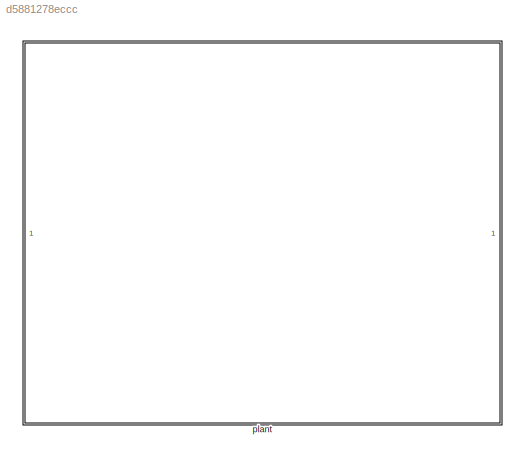
MODEL slx_d5881278eccc
KIND library
CONFIG AbsTol = auto
CONFIG EnableMultiTasking = off
CONFIG FixedStep = auto
CONFIG MaxStep = auto
CONFIG MinStep = auto
CONFIG RelTol = 1e-3
CONFIG SampleTimeConstraint = Unconstrained
CONFIG SolverName = VariableStepAuto
CONFIG StartTime = 0.0
CONFIG StopTime = 10.0
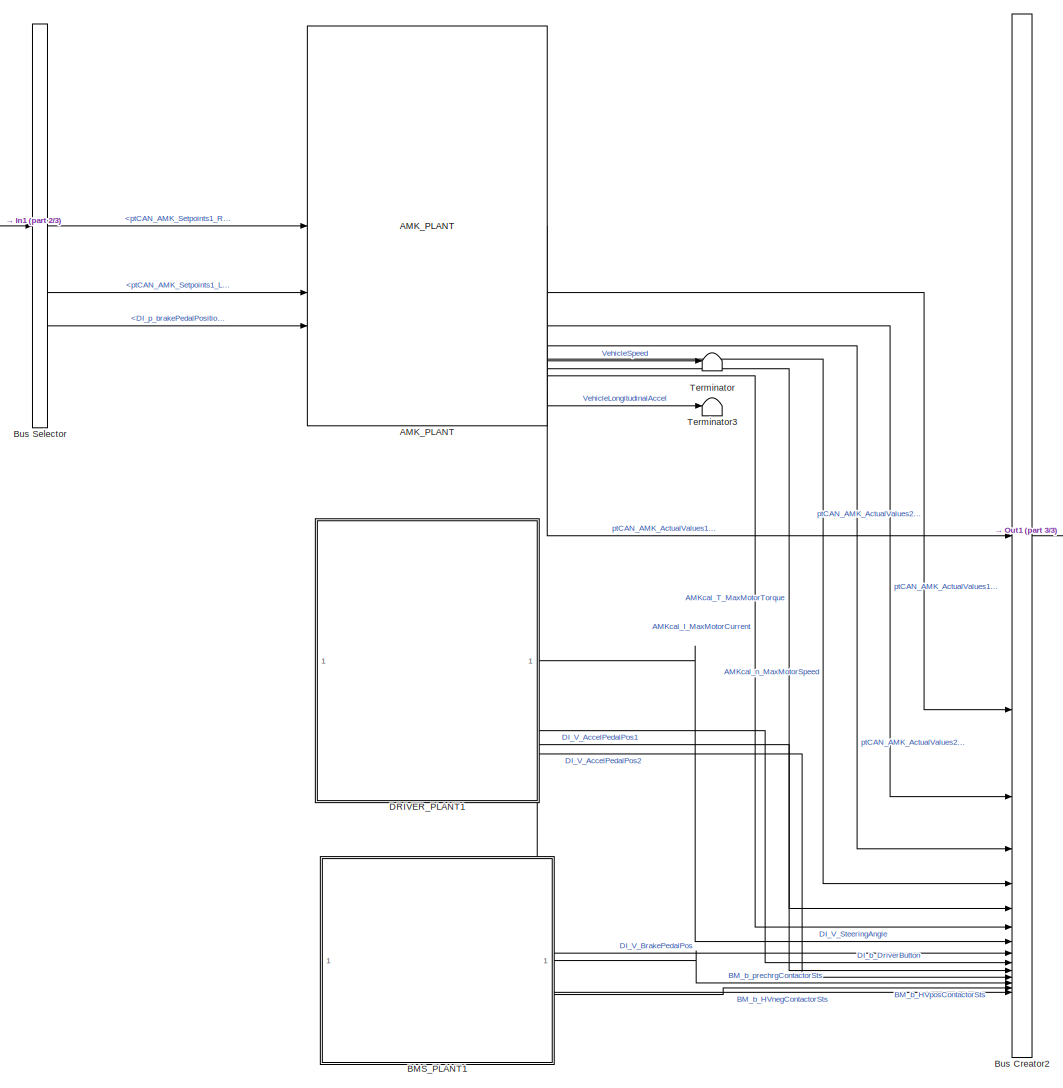
[diagram: plant - part 1/3, most of the canvas]
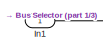
[diagram: plant - part 2/3, top left region]
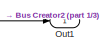
[diagram: plant - part 3/3, middle right region]
BLOCK [SubSystem] plant
BLOCK [Reference] plant/AMK_PLANT  REF=AMK_model_lib/AMK_PLANT
  SourceBlock = AMK_model_lib/AMK_PLANT
  SourceType = SubSystem
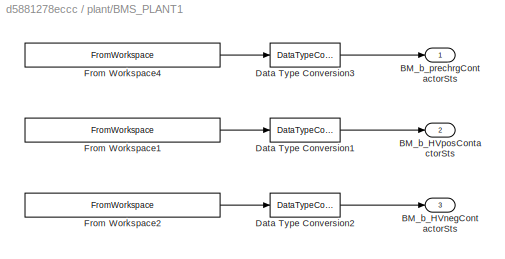
BLOCK [SubSystem] plant/BMS_PLANT1
BLOCK [Outport] plant/BMS_PLANT1/BM_b_HVnegContactorSts
  Port = 3
BLOCK [Outport] plant/BMS_PLANT1/BM_b_HVposContactorSts
  Port = 2
BLOCK [Outport] plant/BMS_PLANT1/BM_b_prechrgContactorSts
BLOCK [DataTypeConversion] plant/BMS_PLANT1/Data Type Conversion1
  OutDataTypeStr = boolean
  RndMeth = Floor
  SaturateOnIntegerOverflow = off
BLOCK [DataTypeConversion] plant/BMS_PLANT1/Data Type Conversion2
  OutDataTypeStr = boolean
  RndMeth = Floor
  SaturateOnIntegerOverflow = off
BLOCK [DataTypeConversion] plant/BMS_PLANT1/Data Type Conversion3
  OutDataTypeStr = boolean
  RndMeth = Floor
  SaturateOnIntegerOverflow = off
BLOCK [FromWorkspace] plant/BMS_PLANT1/From Workspace1
  VariableName = VCS_inputData.get('BM_b_HVposContactorSts')
BLOCK [FromWorkspace] plant/BMS_PLANT1/From Workspace2
  VariableName = VCS_inputData.get('BM_b_HVnegContactorSts')
BLOCK [FromWorkspace] plant/BMS_PLANT1/From Workspace4
  VariableName = VCS_inputData.get('BM_b_prechrgContactorSts')
BLOCK [BusCreator] plant/Bus Creator2
  DisplayOption = bar
  InheritFromInputs = on
  Inputs = 15
BLOCK [BusSelector] plant/Bus Selector
  OutputSignals = ptCAN_AMK_Setpoints1_Right,ptCAN_AMK_Setpoints1_Left,DI_p_brakePedalPosition
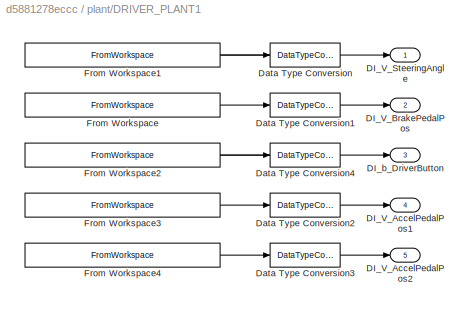
BLOCK [SubSystem] plant/DRIVER_PLANT1
BLOCK [Outport] plant/DRIVER_PLANT1/DI_V_AccelPedalPos1
  Port = 4
BLOCK [Outport] plant/DRIVER_PLANT1/DI_V_AccelPedalPos2
  Port = 5
BLOCK [Outport] plant/DRIVER_PLANT1/DI_V_BrakePedalPos
  Port = 2
BLOCK [Outport] plant/DRIVER_PLANT1/DI_V_SteeringAngle
BLOCK [Outport] plant/DRIVER_PLANT1/DI_b_DriverButton
  Port = 3
BLOCK [DataTypeConversion] plant/DRIVER_PLANT1/Data Type Conversion
  OutDataTypeStr = int16
  RndMeth = Floor
  SaturateOnIntegerOverflow = off
BLOCK [DataTypeConversion] plant/DRIVER_PLANT1/Data Type Conversion1
  OutDataTypeStr = int16
  RndMeth = Floor
  SaturateOnIntegerOverflow = off
BLOCK [DataTypeConversion] plant/DRIVER_PLANT1/Data Type Conversion2
  OutDataTypeStr = int16
  RndMeth = Floor
  SaturateOnIntegerOverflow = off
BLOCK [DataTypeConversion] plant/DRIVER_PLANT1/Data Type Conversion3
  OutDataTypeStr = int16
  RndMeth = Floor
  SaturateOnIntegerOverflow = off
BLOCK [DataTypeConversion] plant/DRIVER_PLANT1/Data Type Conversion4
  OutDataTypeStr = boolean
  RndMeth = Floor
  SaturateOnIntegerOverflow = off
BLOCK [FromWorkspace] plant/DRIVER_PLANT1/From Workspace
  VariableName = VCS_inputData.get('DI_V_BrakePedalPos')
BLOCK [FromWorkspace] plant/DRIVER_PLANT1/From Workspace1
  VariableName = VCS_inputData.get('DI_V_SteeringAngle')
BLOCK [FromWorkspace] plant/DRIVER_PLANT1/From Workspace2
  VariableName = VCS_inputData.get('DI_b_DriverButton')
BLOCK [FromWorkspace] plant/DRIVER_PLANT1/From Workspace3
  VariableName = VCS_inputData.get('DI_V_AccelPedalPos1')
BLOCK [FromWorkspace] plant/DRIVER_PLANT1/From Workspace4
  VariableName = VCS_inputData.get('DI_V_AccelPedalPos2')
BLOCK [Inport] plant/In1
BLOCK [Outport] plant/Out1
BLOCK [Terminator] plant/Terminator
BLOCK [Terminator] plant/Terminator3
LINE plant/AMK_PLANT:1 -> plant/Bus Creator2:1
LINE plant/AMK_PLANT:2 -> plant/Bus Creator2:2
LINE plant/AMK_PLANT:3 -> plant/Bus Creator2:3
LINE plant/AMK_PLANT:4 -> plant/Bus Creator2:4
LINE plant/AMK_PLANT:5 -> plant/Bus Creator2:5
LINE plant/AMK_PLANT:6 -> plant/Bus Creator2:6
LINE plant/AMK_PLANT:7 -> plant/Bus Creator2:7
LINE plant/AMK_PLANT:8 -> plant/Terminator:1
LINE plant/AMK_PLANT:9 -> plant/Terminator3:1
LINE plant/BMS_PLANT1/Data Type Conversion1:1 -> plant/BMS_PLANT1/BM_b_HVposContactorSts:1
LINE plant/BMS_PLANT1/Data Type Conversion2:1 -> plant/BMS_PLANT1/BM_b_HVnegContactorSts:1
LINE plant/BMS_PLANT1/Data Type Conversion3:1 -> plant/BMS_PLANT1/BM_b_prechrgContactorSts:1
LINE plant/BMS_PLANT1/From Workspace1:1 -> plant/BMS_PLANT1/Data Type Conversion1:1
LINE plant/BMS_PLANT1/From Workspace2:1 -> plant/BMS_PLANT1/Data Type Conversion2:1
LINE plant/BMS_PLANT1/From Workspace4:1 -> plant/BMS_PLANT1/Data Type Conversion3:1
LINE plant/BMS_PLANT1:1 -> plant/Bus Creator2:13
LINE plant/BMS_PLANT1:2 -> plant/Bus Creator2:14
LINE plant/BMS_PLANT1:3 -> plant/Bus Creator2:15
LINE plant/Bus Creator2:1 -> plant/Out1:1
LINE plant/Bus Selector:1 -> plant/AMK_PLANT:1
LINE plant/Bus Selector:2 -> plant/AMK_PLANT:2
LINE plant/Bus Selector:3 -> plant/AMK_PLANT:3
LINE plant/DRIVER_PLANT1/Data Type Conversion1:1 -> plant/DRIVER_PLANT1/DI_V_BrakePedalPos:1
LINE plant/DRIVER_PLANT1/Data Type Conversion2:1 -> plant/DRIVER_PLANT1/DI_V_AccelPedalPos1:1
LINE plant/DRIVER_PLANT1/Data Type Conversion3:1 -> plant/DRIVER_PLANT1/DI_V_AccelPedalPos2:1
LINE plant/DRIVER_PLANT1/Data Type Conversion4:1 -> plant/DRIVER_PLANT1/DI_b_DriverButton:1
LINE plant/DRIVER_PLANT1/Data Type Conversion:1 -> plant/DRIVER_PLANT1/DI_V_SteeringAngle:1
LINE plant/DRIVER_PLANT1/From Workspace1:1 -> plant/DRIVER_PLANT1/Data Type Conversion:1
LINE plant/DRIVER_PLANT1/From Workspace2:1 -> plant/DRIVER_PLANT1/Data Type Conversion4:1
LINE plant/DRIVER_PLANT1/From Workspace3:1 -> plant/DRIVER_PLANT1/Data Type Conversion2:1
LINE plant/DRIVER_PLANT1/From Workspace4:1 -> plant/DRIVER_PLANT1/Data Type Conversion3:1
LINE plant/DRIVER_PLANT1/From Workspace:1 -> plant/DRIVER_PLANT1/Data Type Conversion1:1
LINE plant/DRIVER_PLANT1:1 -> plant/Bus Creator2:8
LINE plant/DRIVER_PLANT1:2 -> plant/Bus Creator2:9
LINE plant/DRIVER_PLANT1:3 -> plant/Bus Creator2:10
LINE plant/DRIVER_PLANT1:4 -> plant/Bus Creator2:11
LINE plant/DRIVER_PLANT1:5 -> plant/Bus Creator2:12
LINE plant/In1:1 -> plant/Bus Selector:1
